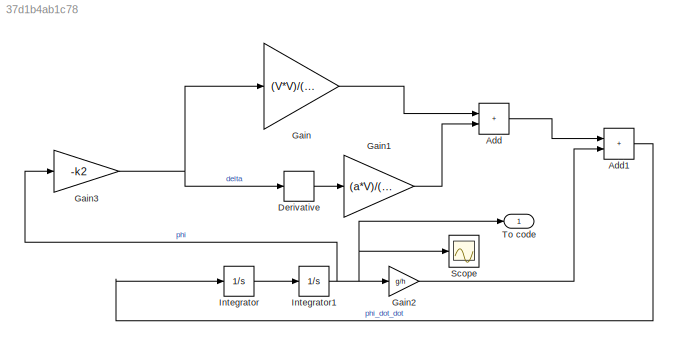
MODEL slx_37d1b4ab1c78
KIND model
CONFIG AbsTol = auto
CONFIG EnableMultiTasking = off
CONFIG FixedStep = auto
CONFIG MaxStep = auto
CONFIG MinStep = auto
CONFIG RelTol = 1e-3
CONFIG SampleTimeConstraint = Unconstrained
CONFIG SolverName = VariableStepAuto
CONFIG StartTime = 0.0
CONFIG StopTime = 20
BLOCK [Sum] Add
  IconShape = rectangular
  Ports = [2, 1]
BLOCK [Sum] Add1
  IconShape = rectangular
  Ports = [2, 1]
BLOCK [Derivative] Derivative
BLOCK [Gain] Gain
  Gain = (V*V)/(b*h)
BLOCK [Gain] Gain1
  Gain = (a*V)/(b*h)
BLOCK [Gain] Gain2
  Gain = g/h
BLOCK [Gain] Gain3
  Gain = -k2
BLOCK [Integrator] Integrator
  Ports = [1, 1]
BLOCK [Integrator] Integrator1
  InitialCondition = 0.17453
  Ports = [1, 1]
BLOCK [Scope] Scope
  Floating = off
  NumInputPorts = 1
  Ports = [1]
  ScopeSpecificationString = Simulink.scopes.TimeScopeBlockCfg('CurrentConfiguration', extmgr.ConfigurationSet(extmgr.Configuration('Core','General UI',true),extmgr.Configuration('Core','Source UI',true),extmgr.Configuration('Sources','WiredSimulink',true),extmgr.Configuration('Visuals','Time Domain',true,'SerializedDisplays',{struct('MinYLimReal','-11612984123063348550242783136941846359873905310991559818073025186307504842084...<+3805ch>
BLOCK [Outport] To code
LINE Add1:1 -> Integrator:1
LINE Add:1 -> Add1:1
LINE Derivative:1 -> Gain1:1
LINE Gain1:1 -> Add:2
LINE Gain2:1 -> Add1:2
NET Gain3:1 -> Derivative:1, Gain:1
LINE Gain:1 -> Add:1
NET Integrator1:1 -> Gain2:1, Gain3:1, Scope:1, To code:1
LINE Integrator:1 -> Integrator1:1
note: NET lines group one-source signal fan-out (src -> all destinations, sorted); 1:1 wires keep LINE
